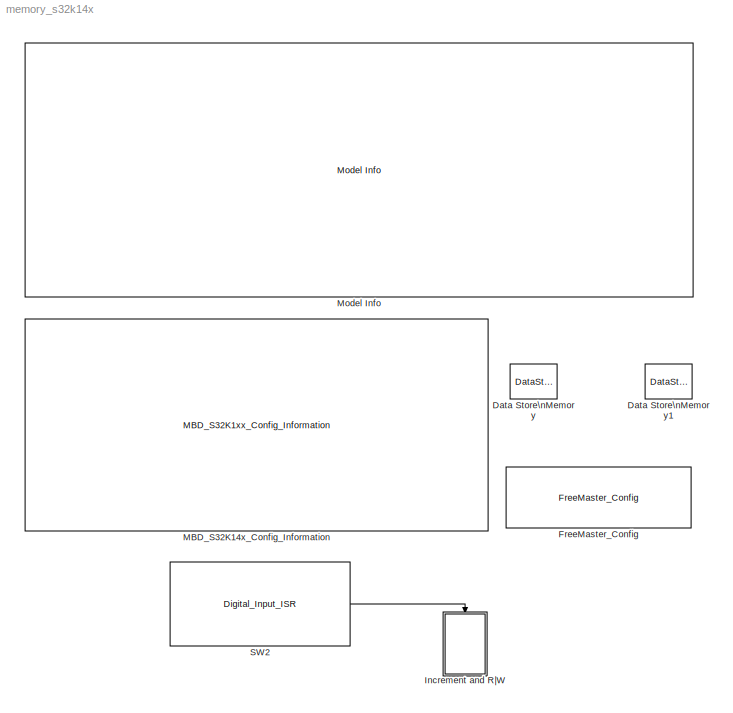
MODEL memory_s32k14x
KIND model
CONFIG InitFcn = mbd_s32k_consistency_checks(bdroot(gcs));
BLOCK [DataStoreMemory] Data Store\nMemory
  DataStoreName = write_val
  InitialValue = 5
  OutDataTypeStr = uint32
  ReadBeforeWriteMsg = warning
  SID = 3
  ShowAdditionalParam = off
  WriteAfterReadMsg = warning
  WriteAfterWriteMsg = warning
BLOCK [DataStoreMemory] Data Store\nMemory1
  DataStoreName = read_val
  InitialValue = 5
  OutDataTypeStr = uint32
  ReadBeforeWriteMsg = warning
  SID = 7
  ShowAdditionalParam = off
  WriteAfterReadMsg = warning
  WriteAfterWriteMsg = warning
BLOCK [Reference] FreeMaster_Config  REF=mbd_s32k1xx_ec_toolbox/Utility Blocks/FreeMaster_Config
  Ports = []
  SID = 15
  SourceBlock = mbd_s32k1xx_ec_toolbox/Utility Blocks/FreeMaster_Config
  SourceType = fm_s32k_config
  baudrate = 115200
  comm_buffer_size = 255
  comm_buffer_size_auto = on
  comm_rqueue_size = 32
  comm_rqueue_size_default = on
  interface = LPUART1
  isr_prio = 15
  max_rec_vars = 8
  max_scope_vars = 8
  mode = Poll-driven
  rec_buff_size = 1024
  rec_timebase = 0
  rec_timebase_unit = seconds
  rxd = PTC6: [LPUART1_RX | Receive]
  show_adv_opts = off
  txd = PTC7: [LPUART1_TX | Transmit]
  use_recorder = on
  use_scope = on
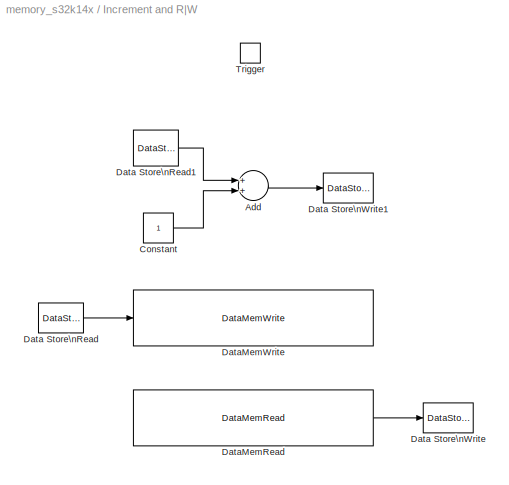
BLOCK [SubSystem] Increment and R|W
  Ports = [0, 0, 0, 1]
  RequestExecContextInheritance = off
  SID = 12
  Variant = off
BLOCK [Sum] Increment and R|W/Add
  InputSameDT = off
  OutDataTypeStr = Inherit: Inherit via internal rule
  Ports = [2, 1]
  SID = 17
  SaturateOnIntegerOverflow = off
BLOCK [Constant] Increment and R|W/Constant
  OutDataTypeStr = uint32
  SID = 18
BLOCK [DataStoreRead] Increment and R|W/Data Store\nRead
  DataStoreName = write_val
  Ports = [0, 1]
  SID = 5
BLOCK [DataStoreRead] Increment and R|W/Data Store\nRead1
  DataStoreName = write_val
  Ports = [0, 1]
  SID = 9
BLOCK [DataStoreWrite] Increment and R|W/Data Store\nWrite
  DataStoreName = read_val
  Ports = [1]
  SID = 4
BLOCK [DataStoreWrite] Increment and R|W/Data Store\nWrite1
  DataStoreName = write_val
  Ports = [1]
  Priority = 1
  SID = 11
BLOCK [Reference] Increment and R|W/DataMemRead  REF=mbd_s32k1xx_ec_toolbox/Utility Blocks/DataMemRead
  Ports = [0, 1]
  Priority = 3
  SID = 6
  SourceBlock = mbd_s32k1xx_ec_toolbox/Utility Blocks/DataMemRead
  SourceType = memory_s32k_read
  base = 0x20000000
  offset = 0x0040
  ptr = uint32_t
BLOCK [Reference] Increment and R|W/DataMemWrite  REF=mbd_s32k1xx_ec_toolbox/Utility Blocks/DataMemWrite
  Ports = [1]
  Priority = 2
  SID = 2
  SourceBlock = mbd_s32k1xx_ec_toolbox/Utility Blocks/DataMemWrite
  SourceType = memory_s32k_write
  base = 0x20000000
  offset = 0x0040
  ptr = uint32_t
BLOCK [TriggerPort] Increment and R|W/Trigger
  PortDimensions = 1
  Ports = []
  SID = 13
  StatesWhenEnabling = held
  TriggerType = function-call
  VariantControl = Variant
BLOCK [Reference] MBD_S32K14x_Config_Information  REF=mbd_s32k1xx_ec_toolbox/MBD_S32K1xx_Config_Information
  ADC_PcrCheckEnDis = on
  AMMCLIB_PcrCheckEnDis = on
  CMP_PcrCheckEnDis = on
  CSEc_PcrCheckEnDis = on
  ConfigParams_PcrCheckEnDis = on
  FM_PcrCheckEnDis = on
  FTM_Dual_Edge_Inputs_PcrCheckEnDis = on
  FTM_Hall_Sensor_Inputs_PcrCheckEnDis = on
  FTM_Input_Edge_Inputs_PcrCheckEnDis = on
  FTM_PWM_PcrCheckEnDis = on
  FTM_Quadrature_Inputs_PcrCheckEnDis = on
  FlexCAN_PcrCheckEnDis = on
  FlexIO_PcrCheckEnDis = on
  GPIO_InputPcrCheckEnDis = on
  GPIO_OutputPcrCheckEnDis = on
  LIN_PcrCheckEnDis = on
  LPI2C_PcrCheckEnDis = on
  LPSPI_PcrCheckEnDis = on
  LPTMR_PcrCheckEnDis = on
  LPUART_PcrCheckEnDis = on
  ModelRef_PcrCheckEnDis = on
  PDB0_PcrCheckEnDis = on
  PIT_PcrCheckEnDis = on
  Ports = []
  Profile_PcrCheckEnDis = on
  RTC_PcrCheckEnDis = on
  SBC_PcrCheckEnDis = on
  SID = 1
  SourceBlock = mbd_s32k1xx_ec_toolbox/MBD_S32K1xx_Config_Information
  SourceType = MBDTBX_EC_S32K
  WDOG_PcrCheckEnDis = on
  config_params = []
  disp_str = Target : S32K144-64KB_SRAM\nPackage : 100-pin\nSystem clock : 80 MHz\nXTAL clock : External 8 MHz\nCompiler : IAR\nTarget Type : FLASH\nDownload Code after build : off\nStep Tick Interrupt Priority : 15
  ds_import_enable = on
  eDMA_PcrCheckEnDis = on
  gcc_target_assemble_opts = -mcpu=cortex-m4 -mthumb -mfloat-abi=hard -mfpu=fpv4-sp-d16 -g
  gcc_target_compile_opts = -mcpu=cortex-m4 -mthumb -mfloat-abi=hard -mfpu=fpv4-sp-d16 -O1 -g -gstrict-dwarf
  gcc_target_default_lcf = on
  gcc_target_link_opts = -mcpu=cortex-m4 -mthumb -mfloat-abi=hard -mfpu=fpv4-sp-d16
  gcc_target_user_lcf = S32K144_48_flash.ld
  ghs_target_assemble_opts = -cpu=cortexm4f -fpu=vfpv4_d16
  ghs_target_compile_opts = -cpu=cortexm4f -thumb -DARM_MATH_CM4 -fpu=vfpv4_d16 -fsingle -Ogeneral -Wundef -Wimplicit-int -Wshadow -Wtrigraphs --no_commons --gnu_asm -gnu99 -gdwarf-2 -G
  ghs_target_default_lcf = on
  ghs_target_link_opts = -cpu=cortexm4f -thumb -fpu=vfpv4_d16
  ghs_target_user_lcf = S32K144_48_flash.ld
  iar_target_assemble_opts = --cpu Cortex-M4F --thumb --fpu VFPv4_sp
  iar_target_compile_opts = --cpu=Cortex-M4F --thumb --fpu=VFPv4_sp -Ol -e --debug --dlib_config normal
  iar_target_default_lcf = on
  iar_target_link_opts = --no_exceptions --vfe --inline
  iar_target_user_lcf = S32K144_48_flash.icf
  mbdt_ver = 0
  mcu_steptick_prio = 15
  mcu_steptick_timer = LPIT Channel 0
  mcu_system_clock_freq = 80
  mcu_target_name = S32K144
  mcu_target_package = 64-LQFP
  mcu_target_sram_size = 48KB
  mcu_xtal_freq = External 8
  pil_download_enable = off
  pil_download_rate = 57600
  pil_opensda_drive = Custom
  pil_opensda_drive_custom = D
  pil_uart_instance = 0
  pil_uart_rx = PTA2: [LPUART0_RX | Receive]
  pil_uart_tx = PTA3: [LPUART0_TX | Transmit]
  rbl_com_port = Custom
  rbl_com_port_custom = COM1
  rbl_download_enable = on
  rbl_download_interface = OpenSDA
  rbl_restart_request = off
  rbl_start_delay = 5000
  target_compiler = GCC
  target_memory = FLASH
BLOCK [Reference] Model Info  REF=simulink/Model-Wide\nUtilities/Model Info
  DisplayStringWithTags = \n%<ModelName>\n\n%<Description>
  Frame = on
  HorizontalTextAlignment = Center
  LeftAlignmentValue = 0.5
  MaskDisplayString = <path> example shows how to use memory blocks:\\n- Data memory Read\\n- Data memory Write\\n\\nFor this application, when the user presses SW2 on S32K144EVB, the value of write_val variable is incremented\\nand that variable is written to 0x20000040 address. Then the application reads the value from the same address \\nand stores it in read_val.\\n\\nFor verification you can o...<+155ch>
  Ports = []
  SID = 16
  SourceBlock = simulink/Model-Wide\nUtilities/Model Info
  SourceProductBaseCode = SL
  SourceProductName = Simulink
  SourceType = CMBlock
BLOCK [Reference] SW2  REF=mbd_s32k1xx_ec_toolbox/GPIO Blocks/Digital_Input_ISR
  Ports = [0, 1]
  SID = 8
  SourceBlock = mbd_s32k1xx_ec_toolbox/GPIO Blocks/Digital_Input_ISR
  SourceType = gpi_s32k_isr
  gpio_pin = PTC12: [PTC12 | Port C I/O]
  irqc = on falling-edge
  prio = 2
LINE Increment and R|W/Add:1 -> Increment and R|W/Data Store\nWrite1:1
LINE Increment and R|W/Constant:1 -> Increment and R|W/Add:2
LINE Increment and R|W/Data Store\nRead1:1 -> Increment and R|W/Add:1
LINE Increment and R|W/Data Store\nRead:1 -> Increment and R|W/DataMemWrite:1
LINE Increment and R|W/DataMemRead:1 -> Increment and R|W/Data Store\nWrite:1
LINE SW2:1 -> Increment and R|W:trigger
note: 1 file-system path scrubbed to <path> (not preserved elsewhere — flat text is the only slx artifact)
